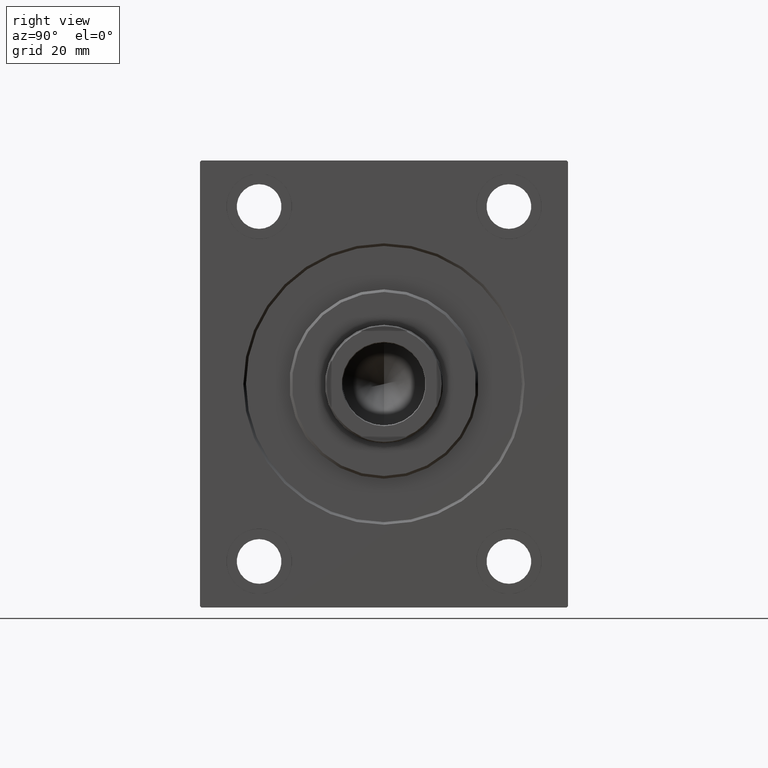
[diagram: clean part render]
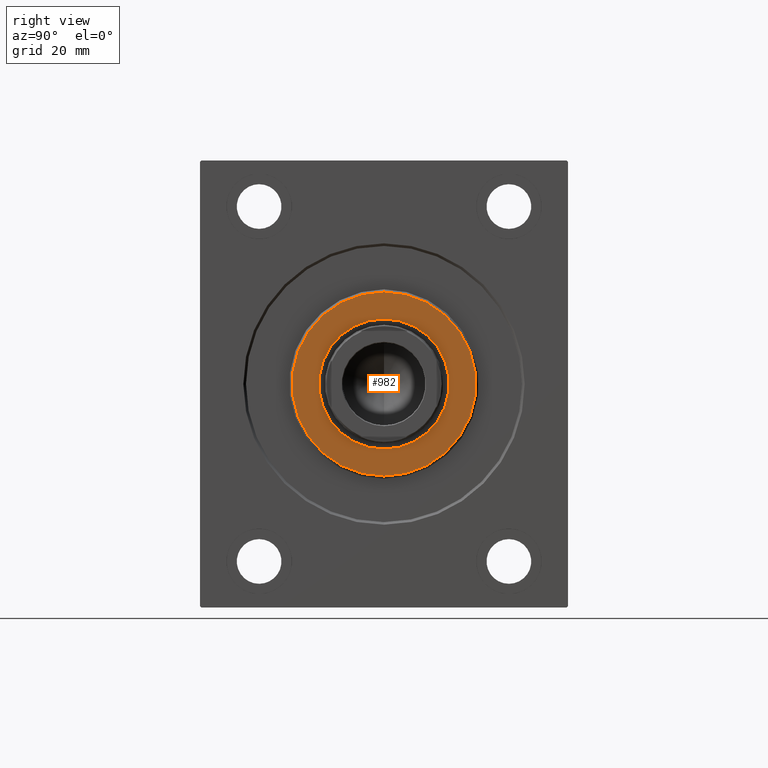
[diagram: same view with one face highlighted and labeled with its STEP entity id]
A machine part, right view. The second image highlights one B-rep face of the part: STEP entity #982.
In plain terms, the highlighted planar face has unit normal (1, 0, 0).
Its self-contained STEP definition (entity closure, byte-faithful):
#946 = CARTESIAN_POINT ( 'NONE',  ( 3.000000000000000000, 0.000000000000000000, 0.000000000000000000 ) ) ;
#982 = ADVANCED_FACE ( 'NONE', ( #25394, #26273 ), #25832, .T. ) ;
#1081 = VERTEX_POINT ( 'NONE', #6277 ) ;
#2206 = AXIS2_PLACEMENT_3D ( 'NONE', #22834, #32284, #32733 ) ;
#3343 = ORIENTED_EDGE ( 'NONE', *, *, #23002, .F. ) ;
#3348 = EDGE_CURVE ( 'NONE', #37809, #1081, #36562, .T. ) ;
#4007 = ORIENTED_EDGE ( 'NONE', *, *, #7578, .F. ) ;
#6277 = CARTESIAN_POINT ( 'NONE',  ( 3.000000000000000000, 4.347496136973101704E-15, -34.99999999999997868 ) ) ;
#6621 = CARTESIAN_POINT ( 'NONE',  ( 3.000000000000000000, 0.000000000000000000, 34.99999999999997868 ) ) ;
#6636 = EDGE_CURVE ( 'NONE', #1081, #37809, #21589, .T. ) ;
#6824 = CIRCLE ( 'NONE', #31936, 24.75000000000000355 ) ;
#7578 = EDGE_CURVE ( 'NONE', #44366, #23695, #33814, .T. ) ;
#8770 = DIRECTION ( 'NONE',  ( 1.000000000000000000, -0.000000000000000000, 0.000000000000000000 ) ) ;
#11714 = DIRECTION ( 'NONE',  ( 0.000000000000000000, 0.000000000000000000, -1.000000000000000000 ) ) ;
#11920 = CARTESIAN_POINT ( 'NONE',  ( 3.000000000000000000, 0.000000000000000000, 0.000000000000000000 ) ) ;
#12015 = ORIENTED_EDGE ( 'NONE', *, *, #3348, .T. ) ;
#13042 = CARTESIAN_POINT ( 'NONE',  ( 3.000000000000000000, 0.000000000000000000, 0.000000000000000000 ) ) ;
#15544 = EDGE_LOOP ( 'NONE', ( #12015, #23176 ) ) ;
#17220 = AXIS2_PLACEMENT_3D ( 'NONE', #13042, #36849, #40209 ) ;
#21589 = CIRCLE ( 'NONE', #2206, 34.99999999999997868 ) ;
#22687 = DIRECTION ( 'NONE',  ( 0.000000000000000000, 0.000000000000000000, -1.000000000000000000 ) ) ;
#22834 = CARTESIAN_POINT ( 'NONE',  ( 3.000000000000000000, 0.000000000000000000, 0.000000000000000000 ) ) ;
#23002 = EDGE_CURVE ( 'NONE', #23695, #44366, #6824, .T. ) ;
#23176 = ORIENTED_EDGE ( 'NONE', *, *, #6636, .T. ) ;
#23534 = CARTESIAN_POINT ( 'NONE',  ( 3.000000000000000000, 0.000000000000000000, -24.75000000000000355 ) ) ;
#23695 = VERTEX_POINT ( 'NONE', #29923 ) ;
#24753 = DIRECTION ( 'NONE',  ( 0.000000000000000000, 0.000000000000000000, -1.000000000000000000 ) ) ;
#25394 = FACE_OUTER_BOUND ( 'NONE', #15544, .T. ) ;
#25832 = PLANE ( 'NONE',  #44384 ) ;
#26273 = FACE_BOUND ( 'NONE', #38631, .T. ) ;
#28780 = AXIS2_PLACEMENT_3D ( 'NONE', #28995, #35952, #11714 ) ;
#28995 = CARTESIAN_POINT ( 'NONE',  ( 3.000000000000000000, 0.000000000000000000, 0.000000000000000000 ) ) ;
#29923 = CARTESIAN_POINT ( 'NONE',  ( 3.000000000000000000, 3.031000827889699650E-15, 24.75000000000000355 ) ) ;
#31936 = AXIS2_PLACEMENT_3D ( 'NONE', #946, #41588, #24753 ) ;
#32284 = DIRECTION ( 'NONE',  ( 1.000000000000000000, -0.000000000000000000, 0.000000000000000000 ) ) ;
#32733 = DIRECTION ( 'NONE',  ( 0.000000000000000000, 0.000000000000000000, -1.000000000000000000 ) ) ;
#33814 = CIRCLE ( 'NONE', #28780, 24.75000000000000355 ) ;
#35952 = DIRECTION ( 'NONE',  ( 1.000000000000000000, 0.000000000000000000, 0.000000000000000000 ) ) ;
#36562 = CIRCLE ( 'NONE', #17220, 34.99999999999997868 ) ;
#36849 = DIRECTION ( 'NONE',  ( 1.000000000000000000, -0.000000000000000000, 0.000000000000000000 ) ) ;
#37809 = VERTEX_POINT ( 'NONE', #6621 ) ;
#38631 = EDGE_LOOP ( 'NONE', ( #4007, #3343 ) ) ;
#40209 = DIRECTION ( 'NONE',  ( 0.000000000000000000, 0.000000000000000000, -1.000000000000000000 ) ) ;
#41588 = DIRECTION ( 'NONE',  ( 1.000000000000000000, 0.000000000000000000, 0.000000000000000000 ) ) ;
#44366 = VERTEX_POINT ( 'NONE', #23534 ) ;
#44384 = AXIS2_PLACEMENT_3D ( 'NONE', #11920, #8770, #22687 ) ;